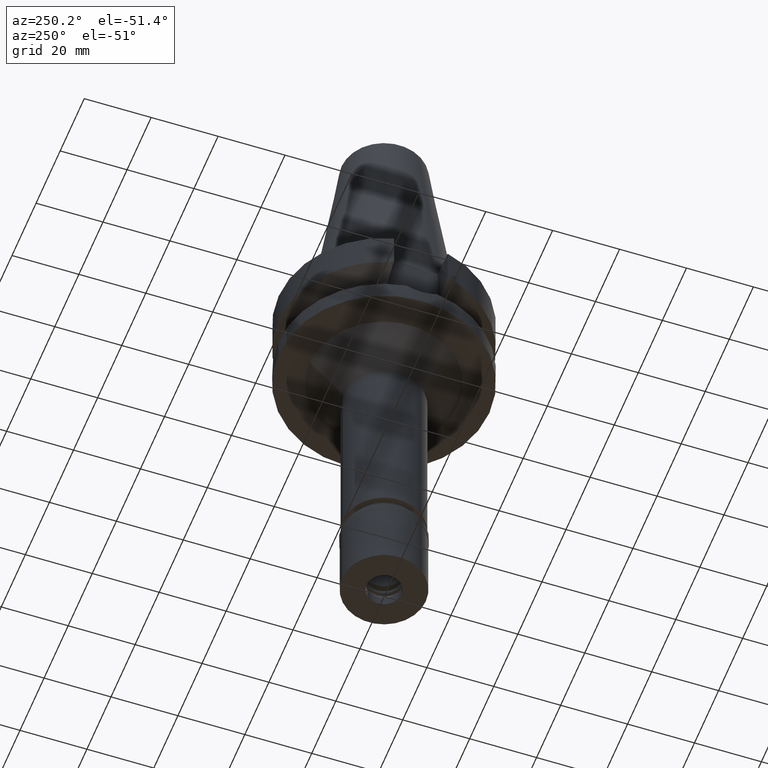
[diagram: clean part render]
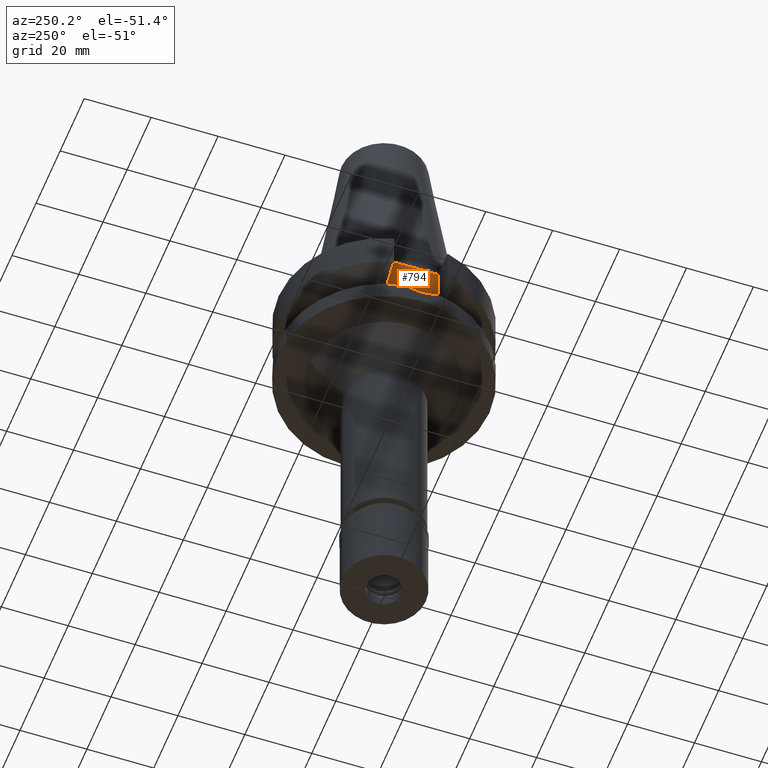
[diagram: same view with one face highlighted and labeled with its STEP entity id]
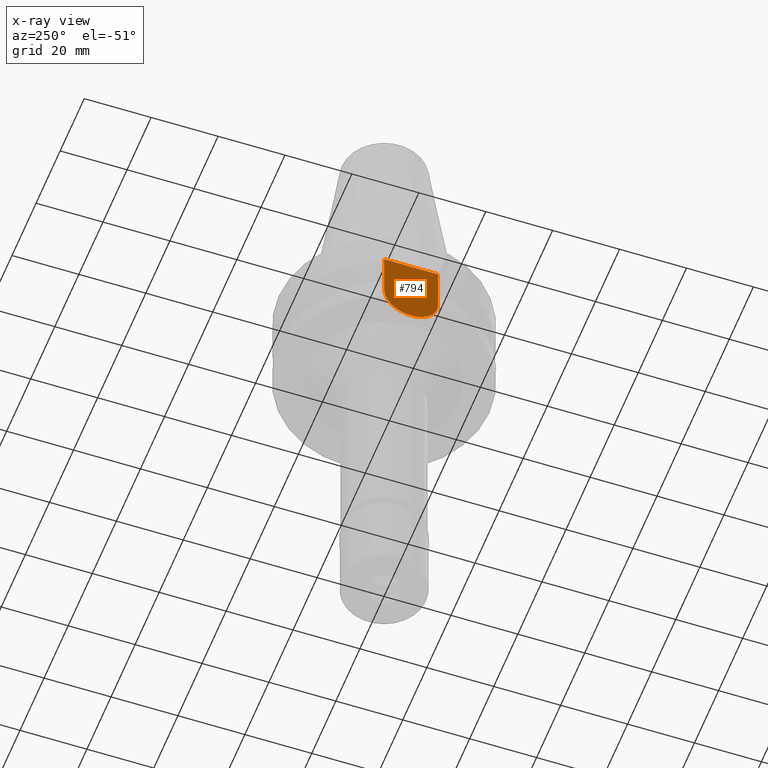
[diagram: x-ray of the same camera — body ghosted, the highlighted face saturated]
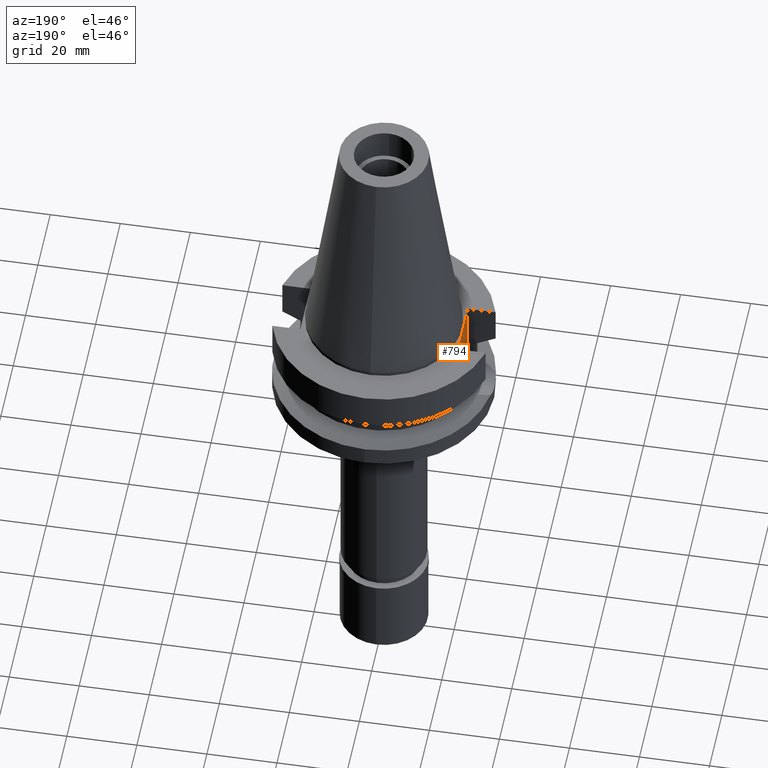
[diagram: same view with one face highlighted and labeled with its STEP entity id]
A machine part, auxiliary view. The second image highlights one B-rep face of the part: STEP entity #794.
The next image is the same camera in x-ray: the body ghosted, the highlighted face saturated — about 0% of this face is hidden behind the body in this view.
A second angle (auxiliary view) of the same face is appended — the face is thin or edge-on in the first view.
In plain terms, the highlighted planar face has unit normal (-1, 0, 0).
Its self-contained STEP definition (entity closure, byte-faithful):
#121 = VECTOR ( 'NONE', #1870, 1000.000000000000000 ) ;
#252 = AXIS2_PLACEMENT_3D ( 'NONE', #709, #1862, #1674 ) ;
#275 = PLANE ( 'NONE',  #1931 ) ;
#709 = CARTESIAN_POINT ( 'NONE',  ( -22.50000000000000000, 0.0000000000000000000, -14.94999999999999929 ) ) ;
#721 = DIRECTION ( 'NONE',  ( 0.0000000000000000000, 0.0000000000000000000, 1.000000000000000000 ) ) ;
#794 = ADVANCED_FACE ( 'NONE', ( #3106 ), #275, .T. ) ;
#1134 = ORIENTED_EDGE ( 'NONE', *, *, #2098, .T. ) ;
#1253 = VECTOR ( 'NONE', #1990, 1000.000000000000000 ) ;
#1319 = CIRCLE ( 'NONE', #252, 8.050000000000000711 ) ;
#1381 = VERTEX_POINT ( 'NONE', #2749 ) ;
#1407 = CARTESIAN_POINT ( 'NONE',  ( -22.50000000000000000, 8.050000000000000711, -14.94999999999999929 ) ) ;
#1594 = EDGE_CURVE ( 'NONE', #1622, #3081, #2900, .T. ) ;
#1622 = VERTEX_POINT ( 'NONE', #2617 ) ;
#1627 = EDGE_CURVE ( 'NONE', #2842, #1622, #1319, .T. ) ;
#1674 = DIRECTION ( 'NONE',  ( 0.0000000000000000000, -1.000000000000000000, 0.0000000000000000000 ) ) ;
#1746 = LINE ( 'NONE', #2278, #1253 ) ;
#1762 = ORIENTED_EDGE ( 'NONE', *, *, #1627, .F. ) ;
#1769 = VECTOR ( 'NONE', #2404, 1000.000000000000000 ) ;
#1842 = EDGE_LOOP ( 'NONE', ( #2089, #1762, #2071, #1134 ) ) ;
#1862 = DIRECTION ( 'NONE',  ( 1.000000000000000000, 0.0000000000000000000, 0.0000000000000000000 ) ) ;
#1870 = DIRECTION ( 'NONE',  ( 0.0000000000000000000, 0.0000000000000000000, -1.000000000000000000 ) ) ;
#1920 = DIRECTION ( 'NONE',  ( -1.000000000000000000, 0.0000000000000000000, 0.0000000000000000000 ) ) ;
#1931 = AXIS2_PLACEMENT_3D ( 'NONE', #2213, #1920, #721 ) ;
#1990 = DIRECTION ( 'NONE',  ( 0.0000000000000000000, 1.000000000000000000, 0.0000000000000000000 ) ) ;
#2071 = ORIENTED_EDGE ( 'NONE', *, *, #2662, .F. ) ;
#2089 = ORIENTED_EDGE ( 'NONE', *, *, #1594, .F. ) ;
#2098 = EDGE_CURVE ( 'NONE', #1381, #3081, #1746, .T. ) ;
#2213 = CARTESIAN_POINT ( 'NONE',  ( -22.50000000000000000, 0.0000000000000000000, 0.0000000000000000000 ) ) ;
#2278 = CARTESIAN_POINT ( 'NONE',  ( -22.50000000000000000, -8.050000000000000711, -1.000000000000000000 ) ) ;
#2404 = DIRECTION ( 'NONE',  ( 0.0000000000000000000, 0.0000000000000000000, 1.000000000000000000 ) ) ;
#2611 = LINE ( 'NONE', #2826, #121 ) ;
#2617 = CARTESIAN_POINT ( 'NONE',  ( -22.50000000000000000, 8.050000000000000711, -14.94999999999999929 ) ) ;
#2662 = EDGE_CURVE ( 'NONE', #1381, #2842, #2611, .T. ) ;
#2749 = CARTESIAN_POINT ( 'NONE',  ( -22.50000000000000000, -8.050000000000000711, -1.000000000000000000 ) ) ;
#2826 = CARTESIAN_POINT ( 'NONE',  ( -22.50000000000000000, -8.050000000000000711, -1.000000000000000000 ) ) ;
#2842 = VERTEX_POINT ( 'NONE', #3071 ) ;
#2900 = LINE ( 'NONE', #1407, #1769 ) ;
#3071 = CARTESIAN_POINT ( 'NONE',  ( -22.50000000000000000, -8.050000000000000711, -14.94999999999999929 ) ) ;
#3081 = VERTEX_POINT ( 'NONE', #3103 ) ;
#3103 = CARTESIAN_POINT ( 'NONE',  ( -22.50000000000000000, 8.050000000000000711, -1.000000000000000000 ) ) ;
#3106 = FACE_OUTER_BOUND ( 'NONE', #1842, .T. ) ;